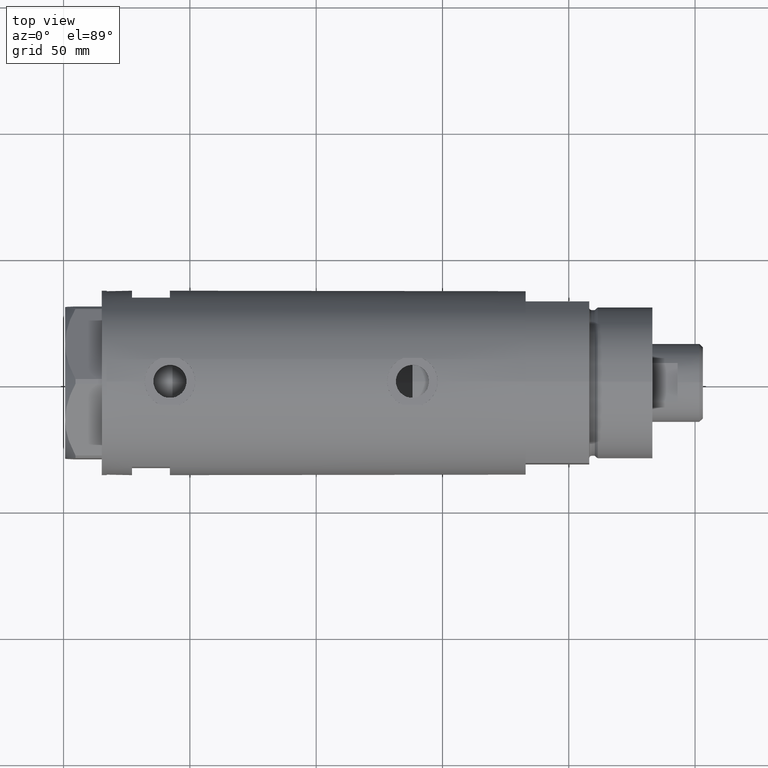
[diagram: clean part render]
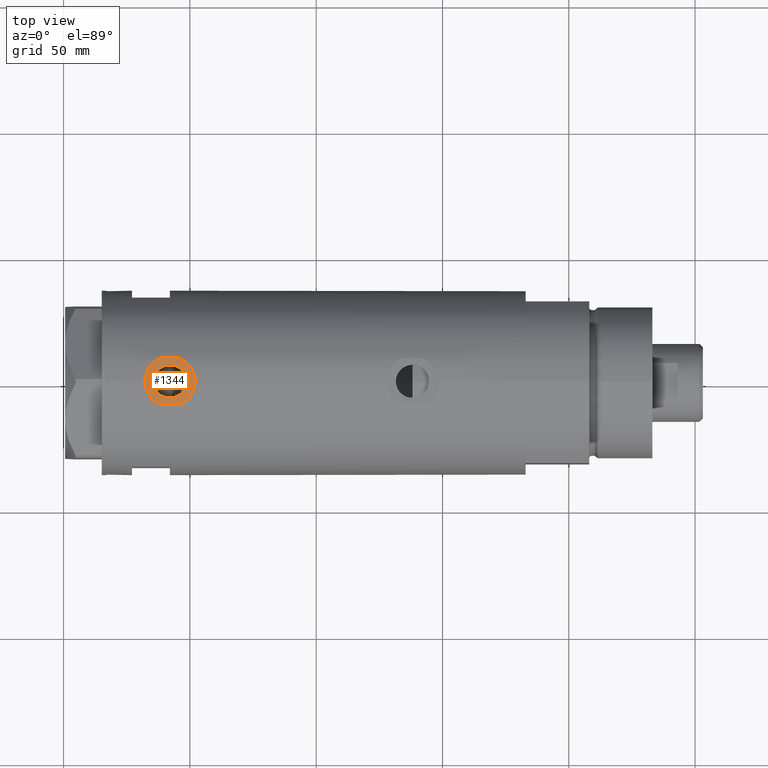
[diagram: same view with one face highlighted and labeled with its STEP entity id]
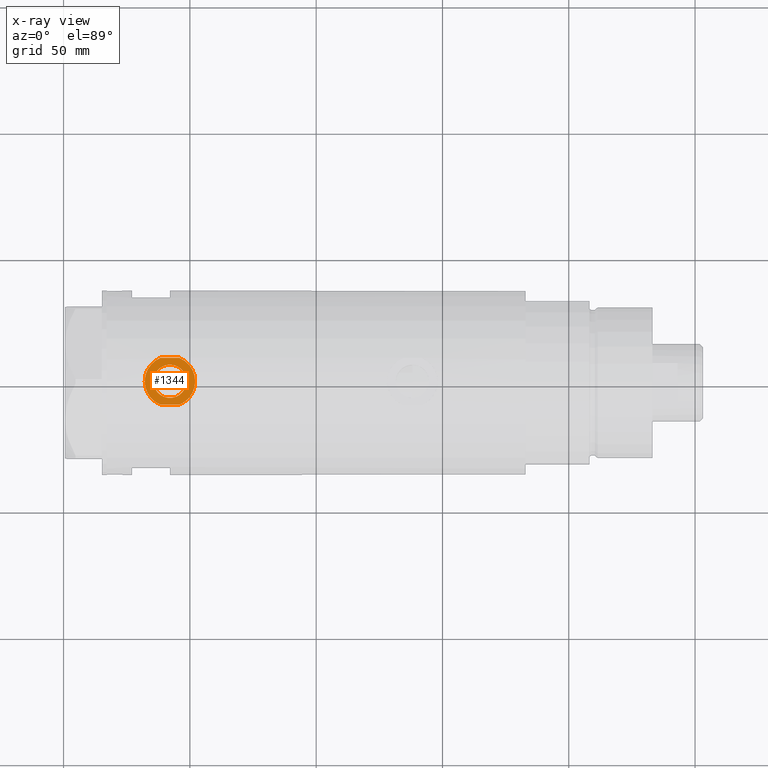
[diagram: x-ray of the same camera — body ghosted, the highlighted face saturated]
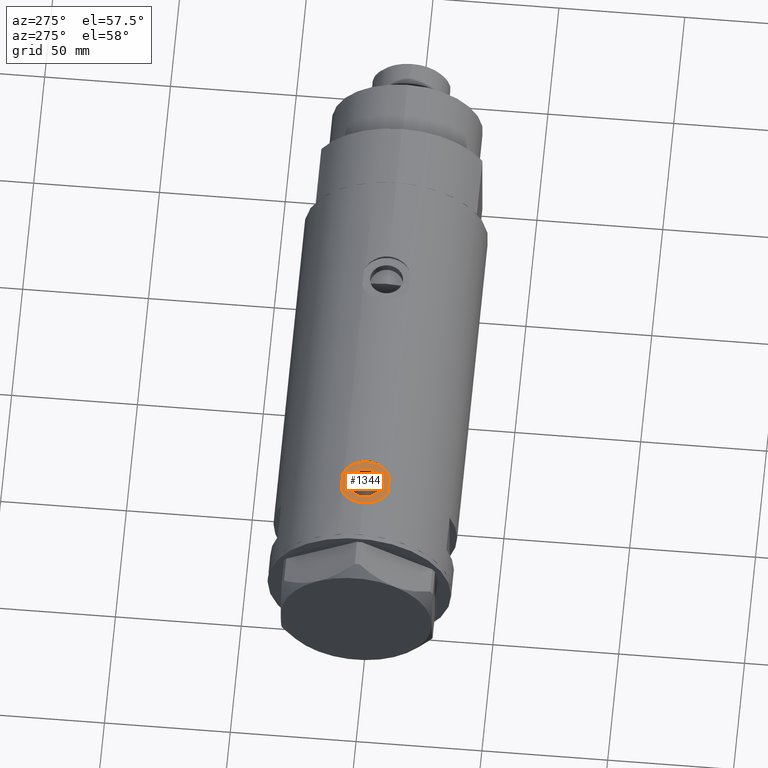
[diagram: same view with one face highlighted and labeled with its STEP entity id]
A machine part, top view. The second image highlights one B-rep face of the part: STEP entity #1344.
The next image is the same camera in x-ray: the body ghosted, the highlighted face saturated — about 0% of this face is hidden behind the body in this view.
A second angle (auxiliary view) of the same face is appended — the face is thin or edge-on in the first view.
In plain terms, the highlighted planar face has unit normal (0, 0, 1).
Its self-contained STEP definition (entity closure, byte-faithful):
#138 = DIRECTION ( 'NONE',  ( 1.000000000000000000, 0.000000000000000000, 0.000000000000000000 ) ) ;
#144 = ORIENTED_EDGE ( 'NONE', *, *, #5387, .T. ) ;
#215 = ORIENTED_EDGE ( 'NONE', *, *, #2209, .T. ) ;
#428 = CARTESIAN_POINT ( 'NONE',  ( 35.29999999999999716, -9.282241108697837362, 61.62021504754764578 ) ) ;
#483 = CIRCLE ( 'NONE', #2022, 10.00000000000000178 ) ;
#631 = EDGE_CURVE ( 'NONE', #3442, #5035, #3754, .T. ) ;
#664 = CARTESIAN_POINT ( 'NONE',  ( 35.29999999999999716, 9.282241108697837362, 61.62021504754764578 ) ) ;
#734 = DIRECTION ( 'NONE',  ( 1.000000000000000000, 0.000000000000000000, 0.000000000000000000 ) ) ;
#747 = CARTESIAN_POINT ( 'NONE',  ( 35.29999999999999716, 9.282241108697837362, -82.90000000000000568 ) ) ;
#774 = CARTESIAN_POINT ( 'NONE',  ( 35.29999999999999716, 0.000000000000000000, 57.89999999999999858 ) ) ;
#886 = EDGE_CURVE ( 'NONE', #1321, #4093, #1352, .T. ) ;
#1003 = DIRECTION ( 'NONE',  ( 0.000000000000000000, 0.000000000000000000, -1.000000000000000000 ) ) ;
#1094 = CIRCLE ( 'NONE', #2524, 10.00000000000000178 ) ;
#1118 = DIRECTION ( 'NONE',  ( -0.000000000000000000, -0.000000000000000000, -1.000000000000000000 ) ) ;
#1162 = CARTESIAN_POINT ( 'NONE',  ( 35.29999999999999716, 0.000000000000000000, 57.89999999999999858 ) ) ;
#1321 = VERTEX_POINT ( 'NONE', #1502 ) ;
#1334 = CARTESIAN_POINT ( 'NONE',  ( 35.29999999999999716, -9.282241108697837362, 54.17978495245235138 ) ) ;
#1344 = ADVANCED_FACE ( 'NONE', ( #2790, #4605 ), #5267, .T. ) ;
#1352 = CIRCLE ( 'NONE', #3276, 6.580000000000002736 ) ;
#1363 = ORIENTED_EDGE ( 'NONE', *, *, #4327, .F. ) ;
#1385 = VERTEX_POINT ( 'NONE', #664 ) ;
#1480 = VECTOR ( 'NONE', #1118, 1000.000000000000000 ) ;
#1502 = CARTESIAN_POINT ( 'NONE',  ( 35.29999999999999716, 8.058175938389579572E-16, 64.48000000000000398 ) ) ;
#1527 = DIRECTION ( 'NONE',  ( 0.000000000000000000, 0.000000000000000000, -1.000000000000000000 ) ) ;
#1647 = VECTOR ( 'NONE', #2451, 1000.000000000000000 ) ;
#1774 = CARTESIAN_POINT ( 'NONE',  ( 35.29999999999999716, 0.000000000000000000, 57.89999999999999858 ) ) ;
#1782 = ORIENTED_EDGE ( 'NONE', *, *, #886, .F. ) ;
#2022 = AXIS2_PLACEMENT_3D ( 'NONE', #1774, #4970, #4468 ) ;
#2058 = DIRECTION ( 'NONE',  ( 1.000000000000000000, 0.000000000000000000, 0.000000000000000000 ) ) ;
#2153 = EDGE_LOOP ( 'NONE', ( #3864, #1782 ) ) ;
#2179 = ORIENTED_EDGE ( 'NONE', *, *, #3619, .T. ) ;
#2209 = EDGE_CURVE ( 'NONE', #1385, #5035, #483, .T. ) ;
#2263 = EDGE_LOOP ( 'NONE', ( #215, #5481, #144, #2179, #1363 ) ) ;
#2315 = CARTESIAN_POINT ( 'NONE',  ( 35.29999999999999716, 0.000000000000000000, 57.89999999999999858 ) ) ;
#2436 = CARTESIAN_POINT ( 'NONE',  ( 35.29999999999999716, 0.000000000000000000, 51.32000000000000028 ) ) ;
#2451 = DIRECTION ( 'NONE',  ( 0.000000000000000000, 0.000000000000000000, 1.000000000000000000 ) ) ;
#2524 = AXIS2_PLACEMENT_3D ( 'NONE', #774, #5842, #3537 ) ;
#2781 = DIRECTION ( 'NONE',  ( 0.000000000000000000, 0.000000000000000000, -1.000000000000000000 ) ) ;
#2790 = FACE_BOUND ( 'NONE', #2153, .T. ) ;
#2928 = CIRCLE ( 'NONE', #3770, 10.00000000000000178 ) ;
#3189 = CARTESIAN_POINT ( 'NONE',  ( 35.29999999999999716, 9.282241108697837362, 54.17978495245235138 ) ) ;
#3276 = AXIS2_PLACEMENT_3D ( 'NONE', #3758, #138, #3382 ) ;
#3382 = DIRECTION ( 'NONE',  ( 0.000000000000000000, 0.000000000000000000, -1.000000000000000000 ) ) ;
#3442 = VERTEX_POINT ( 'NONE', #1334 ) ;
#3537 = DIRECTION ( 'NONE',  ( 0.000000000000000000, 0.000000000000000000, -1.000000000000000000 ) ) ;
#3619 = EDGE_CURVE ( 'NONE', #4901, #5442, #1094, .T. ) ;
#3754 = LINE ( 'NONE', #5607, #1647 ) ;
#3758 = CARTESIAN_POINT ( 'NONE',  ( 35.29999999999999716, 0.000000000000000000, 57.89999999999999858 ) ) ;
#3770 = AXIS2_PLACEMENT_3D ( 'NONE', #2315, #5561, #1003 ) ;
#3783 = EDGE_CURVE ( 'NONE', #4093, #1321, #4035, .T. ) ;
#3864 = ORIENTED_EDGE ( 'NONE', *, *, #3783, .F. ) ;
#4035 = CIRCLE ( 'NONE', #4325, 6.580000000000002736 ) ;
#4093 = VERTEX_POINT ( 'NONE', #2436 ) ;
#4325 = AXIS2_PLACEMENT_3D ( 'NONE', #5036, #2058, #1527 ) ;
#4327 = EDGE_CURVE ( 'NONE', #1385, #5442, #4738, .T. ) ;
#4468 = DIRECTION ( 'NONE',  ( 0.000000000000000000, 0.000000000000000000, -1.000000000000000000 ) ) ;
#4605 = FACE_OUTER_BOUND ( 'NONE', #2263, .T. ) ;
#4738 = LINE ( 'NONE', #747, #1480 ) ;
#4805 = AXIS2_PLACEMENT_3D ( 'NONE', #1162, #734, #2781 ) ;
#4901 = VERTEX_POINT ( 'NONE', #5817 ) ;
#4970 = DIRECTION ( 'NONE',  ( 1.000000000000000000, 0.000000000000000000, 0.000000000000000000 ) ) ;
#5035 = VERTEX_POINT ( 'NONE', #428 ) ;
#5036 = CARTESIAN_POINT ( 'NONE',  ( 35.29999999999999716, 0.000000000000000000, 57.89999999999999858 ) ) ;
#5267 = PLANE ( 'NONE',  #4805 ) ;
#5387 = EDGE_CURVE ( 'NONE', #3442, #4901, #2928, .T. ) ;
#5442 = VERTEX_POINT ( 'NONE', #3189 ) ;
#5481 = ORIENTED_EDGE ( 'NONE', *, *, #631, .F. ) ;
#5561 = DIRECTION ( 'NONE',  ( 1.000000000000000000, 0.000000000000000000, 0.000000000000000000 ) ) ;
#5607 = CARTESIAN_POINT ( 'NONE',  ( 35.29999999999999716, -9.282241108697837362, -82.90000000000000568 ) ) ;
#5817 = CARTESIAN_POINT ( 'NONE',  ( 35.29999999999999716, 0.000000000000000000, 47.89999999999999858 ) ) ;
#5842 = DIRECTION ( 'NONE',  ( 1.000000000000000000, 0.000000000000000000, 0.000000000000000000 ) ) ;